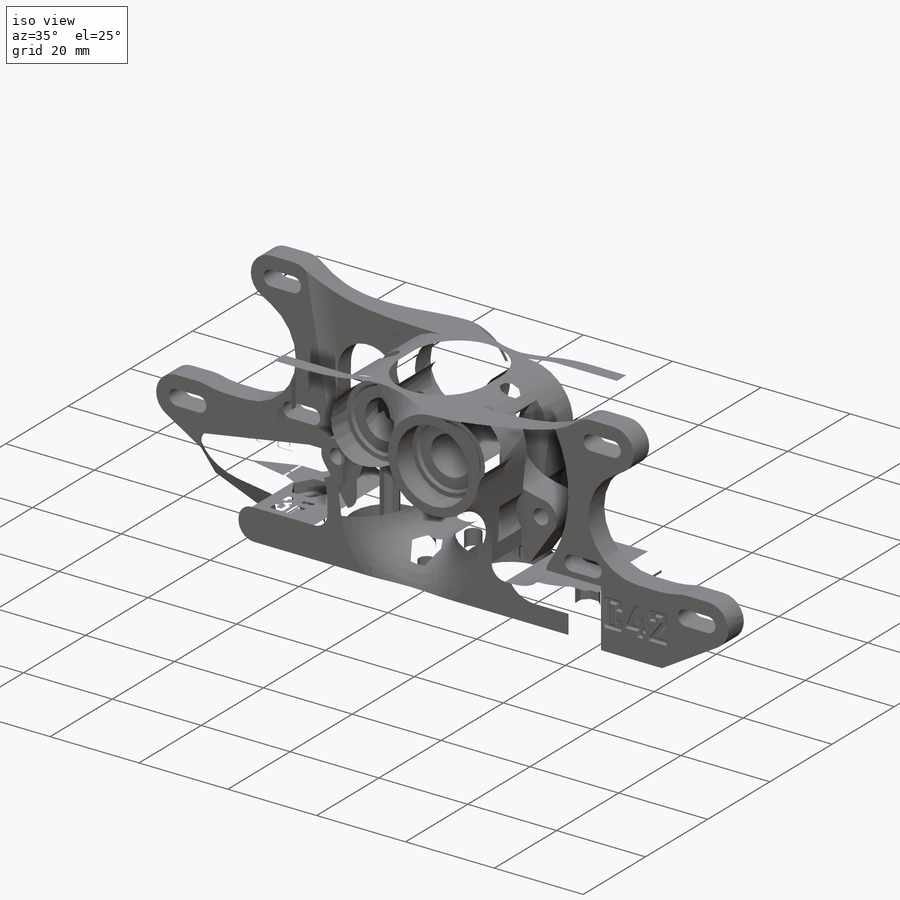
[diagram: iso view]
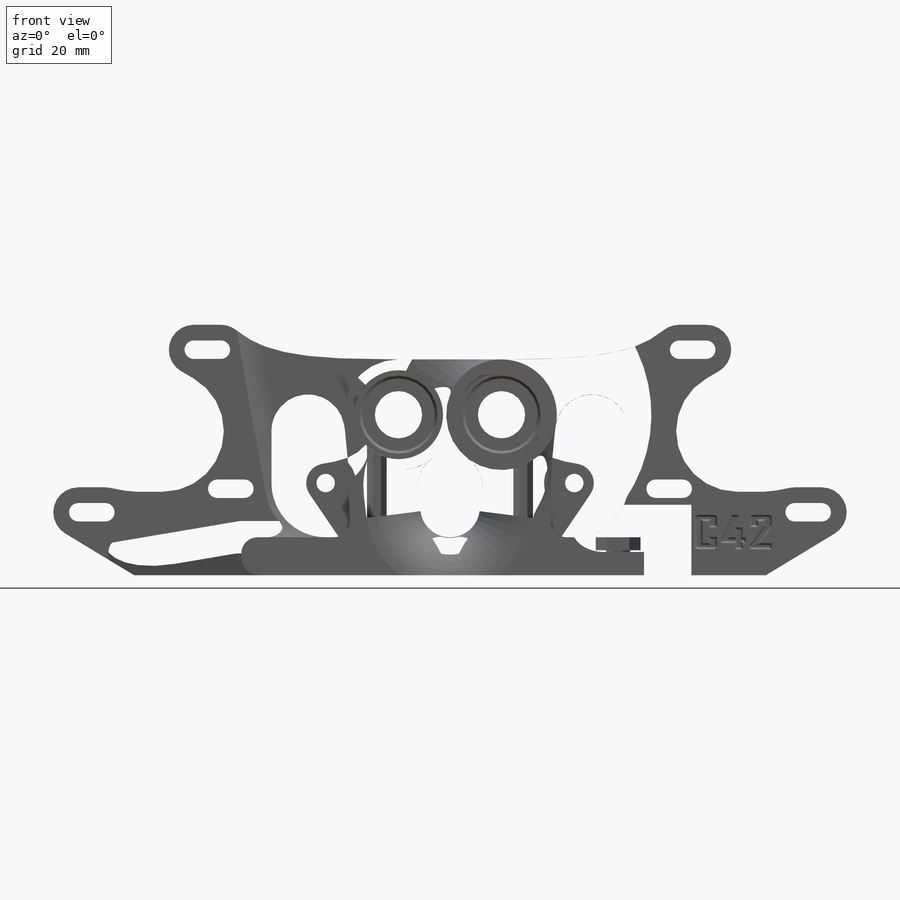
[diagram: front view]
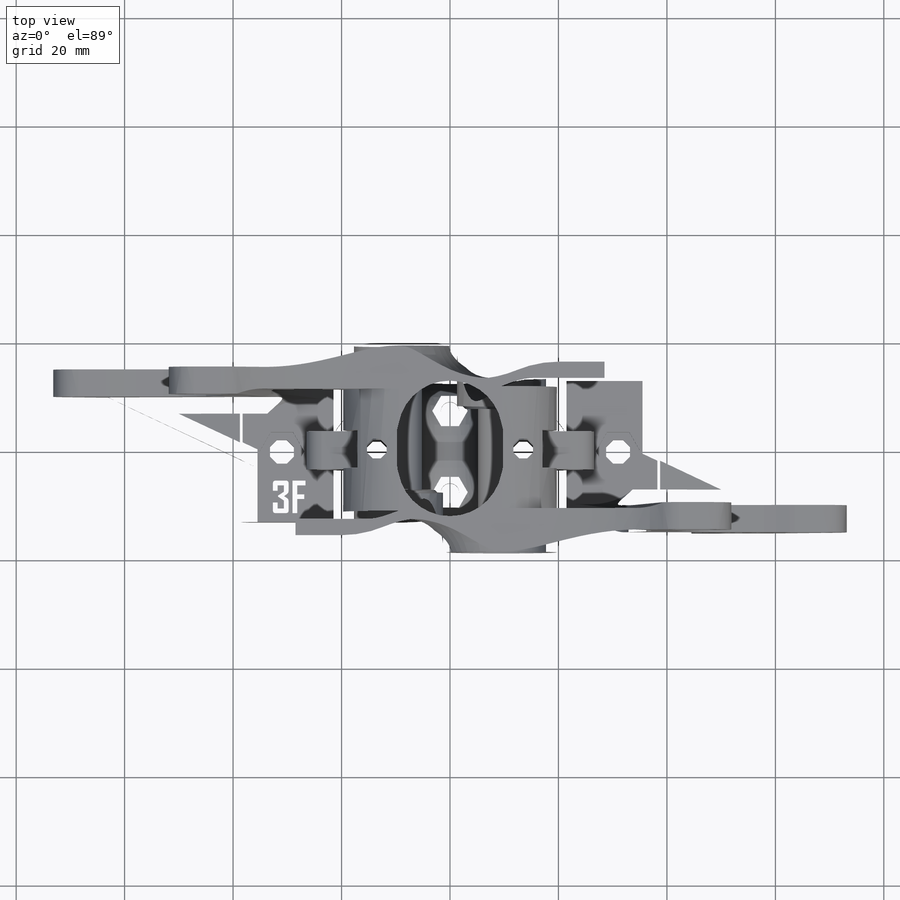
[diagram: top view]
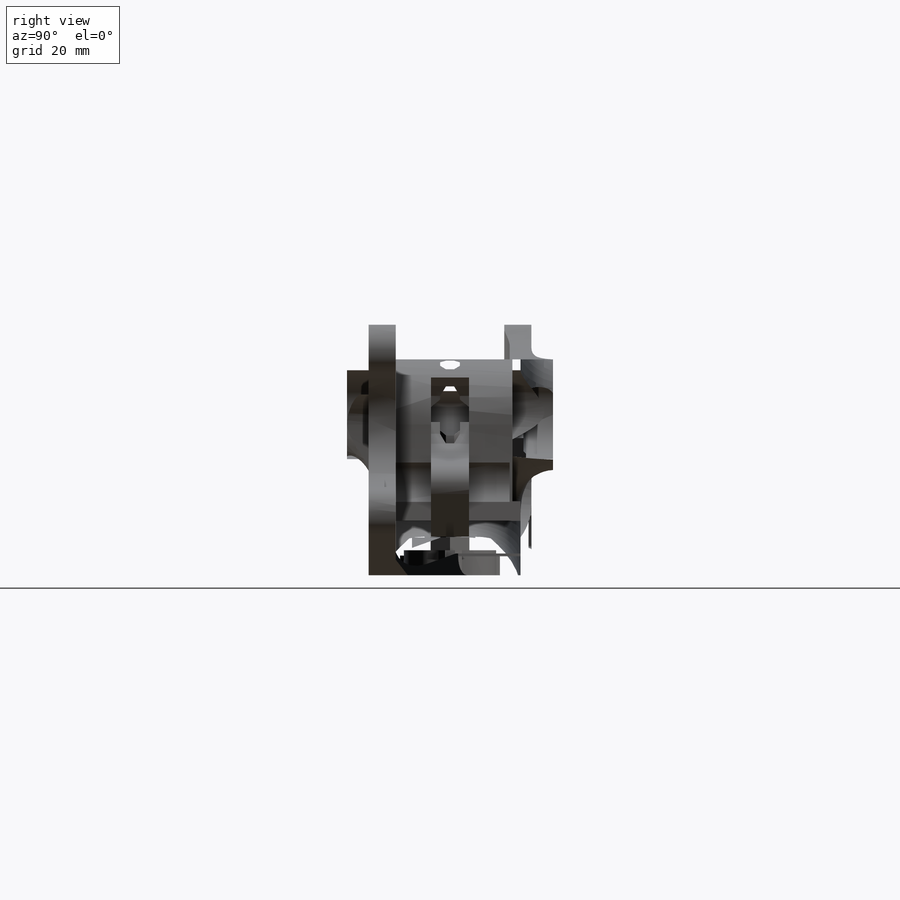
[diagram: right view]
SOLIDWORKS PART (.sldprt)
format: sldprt  version: not decoded by parser v0  size: 8,671,744 bytes
history: native  units: mm
features: sketch x37, cut_extrude x26, fillet x23, extrude x9, pattern_circular x3, material x1, mirror x1 (+18 scaffold rows collapsed; 6 parser-record rows omitted)
feature tree (124):
  scaffold x18  (default folders/planes/origin — collapsed)
  material  "Material <not specified>"
  sketch  "Base Guide"  dims[c1.D5=17.0mm c1.D6=7.15mm c1.D7=4.4mm c1.D8=22.3mm c1.D9=3.63mm c1.D10=7.6mm c2.D8=22.3mm c2.D11=3.4mm c2.D12=5.65mm c2.D1=77.0mm c2.D2=26.0mm c2.D3=25.0mm c2.D4=49.75mm c3.D3=62.0mm c3.D4=27.0mm c3.D10=7.5mm]
  sketch  "Vertical Guide"  dims[c1.D1=8.0mm c1.D2=16.0mm c1.D5=16.0mm c1.D9=12.0mm c1.D12=7.2mm c1.D3=25.0mm c1.D4=2.85mm c1.D6=35.0mm c1.D7=35.0mm c1.D8=46.0mm c1.D10=~145.994565mm c1.D11=13.425mm c2.D12=50.0mm c2.D4=8.0mm c2.D13=12.6mm c2.D14=26.0mm c2.D15=~25.726873mm c2.D10=90.0deg c3.D4=3.0mm c3.D10=27.0mm]
  sketch  "Sketch3"
  extrude  "Base Lower"  Depth=4.6mm
  sketch  "Sketch4"
  extrude  "Base Upper"  Depth=2.4mm
  sketch  "Sketch5"  dims[D1=16.4mm D4=12.0mm D3=3.0mm D5=36.95mm D2=2.0mm]
  extrude  "Main Block"  [1 undecoded]
  sketch  "Sketch8"
  extrude  "Front Bearing Boss"  Depth=6mm
  sketch  "Sketch9"  dims[D1=16.4mm]
  cut_extrude  "Fron Bearing Pocket 1"  Depth=5mm
  sketch  "Sketch10"  dims[D1=16.4mm]
  cut_extrude  "Front Bearing Pocket 2"  Depth=5mm
  sketch  "Sketch12"  dims[D1=8.7mm]
  cut_extrude  "Hobbed Bolt Bore"  [1 undecoded]
  sketch  "Sketch13"  dims[D1=16.0mm D2=12.6mm D4=12.5mm D3=0.5mm]
  cut_extrude  "Feed Notch"  Depth=3.5mm
  sketch  "Sketch15"  dims[D1=3.4mm D2=2.0mm]
  extrude  "Idler Ear"  Depth=3.5mm
  pattern_circular  "CirPattern3"  Count=2 Angle=180deg
  sketch  "Sketch11"  dims[D1=12.0mm D2=~15.171509mm]
  cut_extrude  "Center Hole"  [1 undecoded]
  fillet  "Fillet34"  Radius=10mm
  sketch  "Sketch16"  dims[c1.D2=1.7mm c1.D4=11.2mm c1.D5=4.6mm c1.D6=1.7mm c1.D7=1.7mm c1.D8=1.7mm c1.D9=4.6mm c1.D10=4.6mm c1.D11=4.6mm c1.D3=11.2mm c1.D1=5.0mm c2.D3=5.0mm c2.D6=28.0deg c3.D6=~14.679434mm c3.D1=5.0mm c3.D2=~4.905601mm c4.D2=~9.601255deg c5.D2=5.0mm c5.D5=5.0mm c5.D6=~4.083024mm c5.D4=5.0mm c5.D12=30.0deg]
  extrude  "Motor Wing"  Depth=2mm
  sketch  "Sketch24"
  cut_extrude  "Idler Relief"  Depth=1mm
  fillet  "Idler Relief Fillet"  Radius=10mm
  sketch  "Sketch19"
  extrude  "Motor Wing Rib"  [1 undecoded]
  sketch  "Sketch20"  dims[D1=0.0mm]
  cut_extrude  "Rib Bottom Bevel"  [1 undecoded]
  sketch  "Sketch31"
  cut_extrude  "Cut-Extrude1"  [1 undecoded]
  sketch  "Sketch33"
  cut_extrude  "Cut-Extrude2"  [1 undecoded]
  sketch  "Sketch22"  dims[D1=1.0mm D2=1.0mm]
  cut_extrude  "Bearing Relief 1"  Depth=0.5mm
  sketch  "Sketch23"  dims[D1=1.0mm]
  cut_extrude  "Bearing Relief 2"  Depth=0.5mm
  sketch  "Sketch25"  dims[D1=2.0mm]
  cut_extrude  "Hinge Relief"  Depth=7.5mm
  mirror  "Mirroed Hinge Relief"
  sketch  "Sketch27"  dims[c1.D1=~1.976012mm c2.D1=40.0deg c2.D2=7.0mm c3.D2=40.0deg c3.D3=1.75mm]
  cut_extrude  "Printability Bevels"  Depth=4mm
  sketch  "Sketch29"
  cut_extrude  "C42"  Depth=0.5mm
  fillet  "Fillet37"  Radius=0.25mm
  fillet  "Fillet38"  Radius=0.25mm
  pattern_circular  "CirPattern4"  Count=2 Angle=180deg
  fillet  "Fillet26"  Radius=10mm
  sketch  "Sketch26"
  cut_extrude  "Bottom Center Nut Traps"  Depth=6mm
  sketch  "Sketch28"  dims[D1=0.5mm]
  cut_extrude  "Vent"  Depth=26mm
  sketch  "Sketch37"  dims[c1.D1=5.0mm c1.D8=8.2mm c1.D2=8.0mm c1.D3=4.0mm c1.D4=~10.780505mm c1.D5=8.0mm c2.D2=5.85mm c2.D1=3.0mm c3.D2=6.0mm c3.D3=3.0mm c3.D4=8.0mm c3.D5=23.0mm c3.D6=30.0deg c4.D6=11.0mm c4.D7=11.0mm c4.D5=23.0mm c4.D1=6.0mm]
  extrude  "Cable Anchor"  Depth=3mm
  sketch  "Sketch44"
  cut_extrude  "Cut-Extrude5"  Depth=0.05mm
  pattern_circular  "CirPattern5"  Count=2 Angle=180deg
  parser-record x6  (decoder bookkeeping rows leaked as tree rows — omitted from the tree; the rows remain in map.json)
  fillet  "Fillet16"  Radius=10mm
  fillet  "Fillet18"  Radius=10mm
  fillet  "Fillet23"  Radius=3.5mm
  fillet  "Fillet28"  Radius=40mm
  fillet  "Fillet32"  Radius=2mm
  fillet  "Fillet33"  Radius=3mm
  fillet  "Fillet35"  Radius=3mm
  fillet  "Fillet40"  Radius=3mm
  fillet  "Fillet42"  Radius=3mm
  fillet  "Fillet39"  Radius=10mm
  fillet  "Fillet30"  Radius=5mm
  fillet  "Fillet49"  Radius=4mm
  fillet  "Fillet43"  Radius=20mm
  fillet  "Fillet46"  Radius=1.5mm
  fillet  "Fillet55"  Radius=3mm
  fillet  "Fillet53"  Radius=20mm
  fillet  "Fillet57"  Radius=10mm
  fillet  "Fillet59"  Radius=6mm
  sketch  "Sketch43"  dims[D1=2.7mm]
  cut_extrude  "Cut-Extrude4"  [1 undecoded]
  sketch  "Sketch42"
  cut_extrude  "Version: 1F"  Depth=0.4mm
  sketch  "Sketch6"
  cut_extrude  "Filament Channels - 3mm"  [1 undecoded]
  sketch  "Sketch35"
  cut_extrude  "Version: 3F"  Depth=0.4mm
  sketch  "Sketch40"  dims[D1=4.35mm]
  cut_extrude  "Filament Channels - 1.5mm E3D"  [1 undecoded]
  sketch  "Sketch45"  dims[D1=2.7mm D2=2.7mm]
  cut_extrude  "Cut-Extrude6"  [1 undecoded]
  sketch  "Sketch38"  dims[D1=8.0mm]
  cut_extrude  "E3D Fitting Recess"  Depth=1.6mm
  sketch  "Sketch39"
  cut_extrude  "E3D Fitting Printability"  Depth=2mm
  sketch  "Sketch41"
  cut_extrude  "Version: 1EG"  Depth=0.4mm
  sketch  "Sketch30"
  extrude  "Filament Channel Web"  Depth=0.2mm
decode coverage: 71 of 99 modeling features carry decoded parameters
note: ~ marks probable driven/reference dimensions
note: 11 parameter values undecoded
summary: no parameter record found for 11 features
note: suppression state not decoded; provenance and decode notes live in map.json
